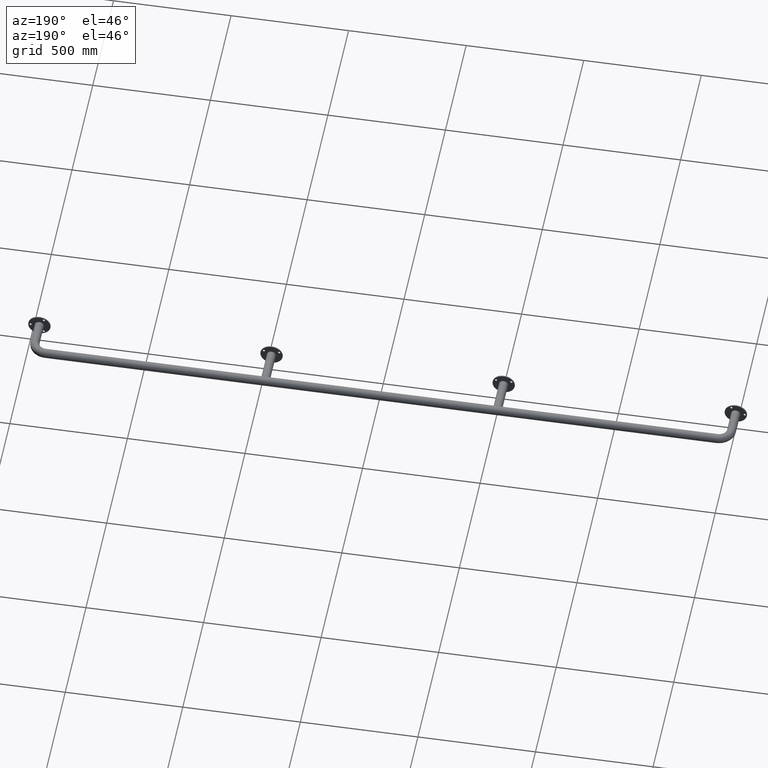
[diagram: clean part render]
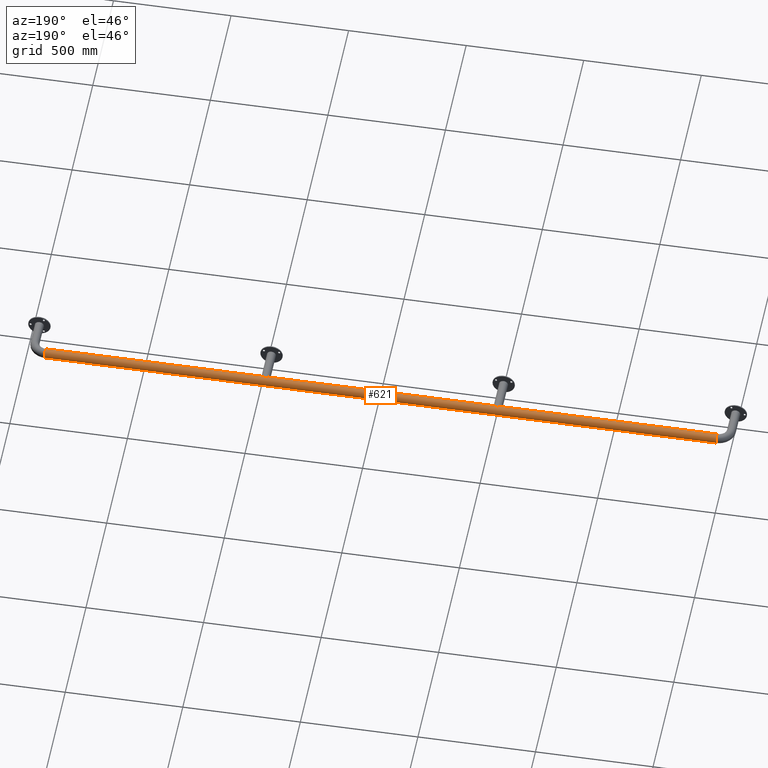
[diagram: same view with one face highlighted and labeled with its STEP entity id]
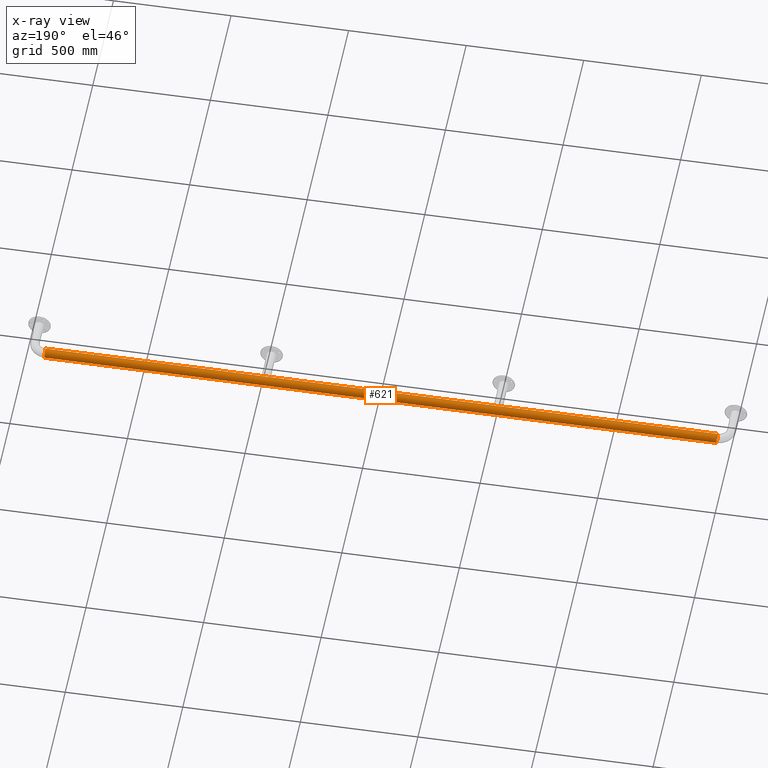
[diagram: x-ray of the same camera — body ghosted, the highlighted face saturated]
A machine part, auxiliary view. The second image highlights one B-rep face of the part: STEP entity #621.
The next image is the same camera in x-ray: the body ghosted, the highlighted face saturated — about 0% of this face is hidden behind the body in this view.
In plain terms, the highlighted cylindrical surface (bore or boss wall) has radius 19.05 mm, axis along (-1, -0, -0).
Its self-contained STEP definition (entity closure, byte-faithful):
#621=ADVANCED_FACE('',(#999,#1001),#1003,.T.);
#999=FACE_OUTER_BOUND('',#1000,.T.);
#1000=EDGE_LOOP('',(#1320));
#1001=FACE_OUTER_BOUND('',#1002,.T.);
#1002=EDGE_LOOP('',(#1321));
#1003=CYLINDRICAL_SURFACE('',#1004,19.05);
#1004=AXIS2_PLACEMENT_3D('',#1005,#1006,#1007);
#1005=CARTESIAN_POINT('',(52.5999999999999,160.,0.));
#1006=DIRECTION('',(-1.,-0.,-0.));
#1007=DIRECTION('',(0.,-1.,0.));
#1320=ORIENTED_EDGE('',*,*,#1410,.T.);
#1321=ORIENTED_EDGE('',*,*,#1411,.F.);
#1410=EDGE_CURVE('',#1471,#1471,#1472,.T.);
#1411=EDGE_CURVE('',#1473,#1473,#1474,.T.);
#1471=VERTEX_POINT('',#1603);
#1472=CIRCLE('',#1604,19.05);
#1473=VERTEX_POINT('',#1608);
#1474=CIRCLE('',#1609,19.05);
#1603=CARTESIAN_POINT('',(2909.3,140.95,2.33295215237571E-015));
#1604=AXIS2_PLACEMENT_3D('',#1605,#1606,#1607);
#1605=CARTESIAN_POINT('',(2909.3,160.,0.));
#1606=DIRECTION('',(-1.,-0.,-0.));
#1607=DIRECTION('',(0.,-1.,0.));
#1608=CARTESIAN_POINT('',(52.5999999999999,140.95,0.));
#1609=AXIS2_PLACEMENT_3D('',#1610,#1611,#1612);
#1610=CARTESIAN_POINT('',(52.5999999999999,160.,0.));
#1611=DIRECTION('',(-1.,2.08936000635827E-016,-0.));
#1612=DIRECTION('',(-2.08936000635827E-016,-1.,1.22464679914735E-016));